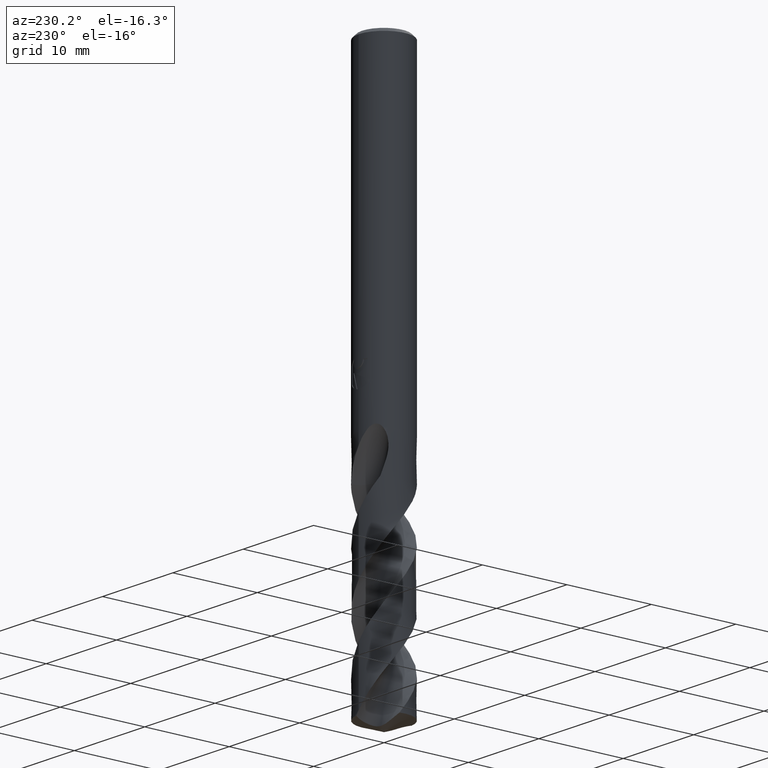
[diagram: clean part render]
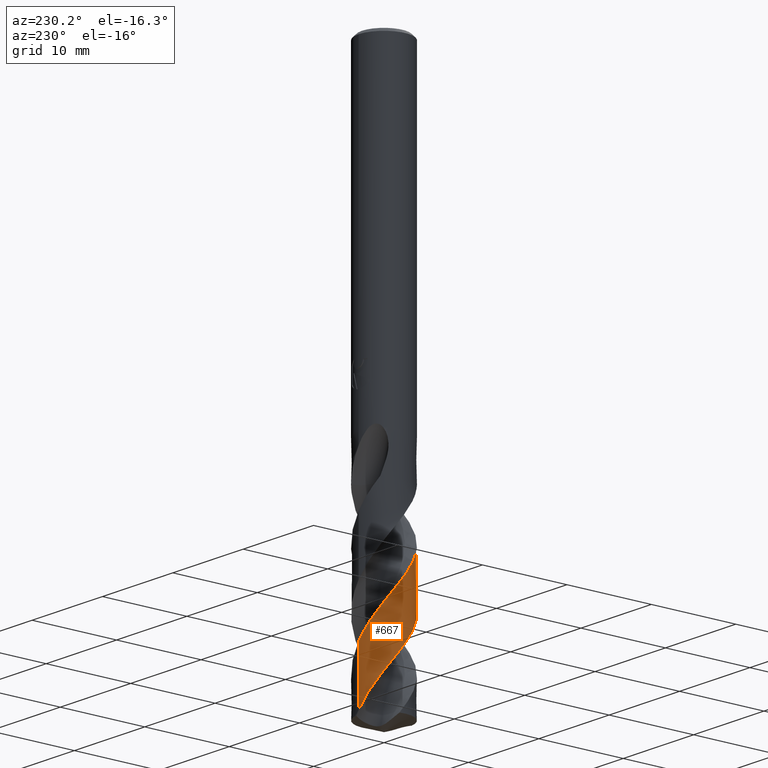
[diagram: same view with one face highlighted and labeled with its STEP entity id]
A machine part, auxiliary view. The second image highlights one B-rep face of the part: STEP entity #667.
In plain terms, the highlighted conical surface has half-angle 0 deg.
Its self-contained STEP definition (entity closure, byte-faithful):
#257=VERTEX_POINT('',#716);
#363=EDGE_CURVE('',#257,#399,#831,.T.);
#375=EDGE_CURVE('',#399,#529,#844,.T.);
#399=VERTEX_POINT('',#871);
#413=EDGE_CURVE('',#529,#515,#886,.T.);
#515=VERTEX_POINT('',#997);
#529=VERTEX_POINT('',#1013);
#583=EDGE_CURVE('',#515,#257,#1071,.T.);
#667=ADVANCED_FACE('',(#1164),#1165,.T.);
#716=CARTESIAN_POINT('',(-7.76769839626345E-014,2.99997405367527,-57.9264290689531));
#831=LINE('',#2190,#2191);
#844=B_SPLINE_CURVE_WITH_KNOTS('',3,(#2209,#2210,#2211,#2212,#2213,#2214,#2215,#2216,#2217,#2218,#2219,#2220,#2221,#2222,#2223,#2224,#2225,#2226,#2227,#2228,#2229,#2230,#2231,#2232,#2233,#2234,#2235,#2236,#2237,#2238,#2239,#2240,#2241,#2242,#2243,#2244,#2245,#2246,#2247,#2248,#2249,#2250,#2251,#2252,#2253,#2254,#2255,#2256,#2257,#2258,#2259,#2260,#2261,#2262,#2263,#2264,#2265,#2266,#2267,#2268,#2269,#2270,#2271,#2272,#2273,#2274,#2275,#2276,#2277,#2278,#2279,#2280,#2281,#2282,#2283,#2284,#2285,#2286),.UNSPECIFIED.,.F.,.F.,(4,2,2,2,2,2,2,2,2,2,2,2,2,2,2,2,2,2,2,2,2,2,2,2,2,2,2,2,2,2,2,2,2,2,2,2,2,2,4),(0.0,1.23059925118849,2.02254366443159,2.67546675293047,4.09672308397308,4.23628683515398,5.82683230148594,6.40497399606678,7.7780970524227,7.91502252090712,9.56634925585409,9.84450840921103,11.4877242502874,11.7588412039597,12.7161327518608,14.2986042545293,14.69491313978,15.0909294602242,15.3754807391882,16.3953776993288,17.9810262349513,18.7752393410076,19.0877081876738,20.7383235339199,21.0281845886458,21.9273418856885,22.3315568392924,22.8934305032543,23.9805915588334,25.9628607800466,26.9171063319389,27.1507275410228,27.3314841823381,27.332107871347,27.3564421567242,27.3779982106044,27.4053041831309,27.4618206861785,27.5436484122927),.UNSPECIFIED.);
#871=CARTESIAN_POINT('',(-2.94166652379847E-010,2.99999825594697,-64.4387979511909));
#886=LINE('',#2496,#2497);
#997=CARTESIAN_POINT('',(-1.00300927533167E-014,-2.99992813344869,-45.5701734954129));
#1013=CARTESIAN_POINT('',(1.29858009831303E-013,-2.9999523347009,-52.0822680513244));
#1071=B_SPLINE_CURVE_WITH_KNOTS('',3,(#3784,#3785,#3786,#3787,#3788,#3789,#3790,#3791,#3792,#3793,#3794,#3795,#3796,#3797,#3798,#3799,#3800,#3801,#3802,#3803,#3804,#3805,#3806,#3807,#3808,#3809,#3810,#3811,#3812,#3813,#3814,#3815,#3816,#3817,#3818,#3819,#3820,#3821,#3822,#3823,#3824,#3825,#3826,#3827,#3828,#3829,#3830,#3831,#3832,#3833,#3834,#3835,#3836,#3837,#3838,#3839,#3840,#3841,#3842,#3843,#3844,#3845,#3846,#3847,#3848,#3849,#3850,#3851,#3852,#3853,#3854,#3855,#3856,#3857,#3858,#3859,#3860,#3861,#3862,#3863,#3864,#3865,#3866,#3867,#3868,#3869),.UNSPECIFIED.,.F.,.F.,(4,2,2,2,2,2,2,2,2,2,2,2,2,2,2,2,2,2,2,2,2,2,2,2,2,2,2,2,2,2,2,2,2,2,2,2,2,2,2,2,2,2,4),(0.0,0.0993043886910324,0.133810008353453,0.198759733156369,0.51618650020772,0.627581816484018,0.698954258966255,0.766036611279358,0.856023579051509,0.957565005734158,1.34121247506467,1.63577952648651,1.92231758631105,3.79579283339037,5.15351212799853,5.91578553599356,6.68924621351449,7.07780265431932,7.44370029096749,8.79859775236509,9.56043310014897,10.334303063432,10.722547094251,11.0750210956175,12.4456948866715,13.2055523892608,13.9797062395637,14.7546070655554,16.2481405469769,16.4087688709198,17.6175894923522,18.3915079182685,19.9131645175091,19.9630808402596,21.5787151557321,21.9328013399243,23.2883165362066,23.8248217374293,24.7699014758561,25.1262025587651,25.7472539043362,26.6829038929545,27.6207703508134),.UNSPECIFIED.);
#1164=FACE_OUTER_BOUND('',#4803,.T.);
#1165=CONICAL_SURFACE('',#4804,2.99995,3.71635454659173E-006);
#2190=CARTESIAN_POINT('',(-3.66830741968708E-016,2.99995,-51.4540446486007));
#2191=VECTOR('',#5074,1.0);
#2209=CARTESIAN_POINT('',(0.355715429172608,2.97883643952611,-64.9080892972014));
#2210=CARTESIAN_POINT('',(0.108423872193947,3.00836534792681,-64.5821464116512));
#2211=CARTESIAN_POINT('',(-0.14126292742069,3.00699487664025,-64.2534313312999));
#2212=CARTESIAN_POINT('',(-0.547022784109965,2.95405006143379,-63.7175674678408));
#2213=CARTESIAN_POINT('',(-0.703916104603996,2.92063233410042,-63.5087790854431));
#2214=CARTESIAN_POINT('',(-0.983777162831405,2.8371744636381,-63.1258038129837));
#2215=CARTESIAN_POINT('',(-1.10750346682162,2.79120229814625,-62.9520627314224));
#2216=CARTESIAN_POINT('',(-1.49003201116616,2.61959523917925,-62.4022537567128));
#2217=CARTESIAN_POINT('',(-1.73356156526769,2.46510658651888,-62.0309006535153));
#2218=CARTESIAN_POINT('',(-1.97251142065753,2.26051244051107,-61.6166980609076));
#2219=CARTESIAN_POINT('',(-1.99359188261644,2.24194319602669,-61.5796521623226));
#2220=CARTESIAN_POINT('',(-2.25212692993936,2.00766523526649,-61.1202779276782));
#2221=CARTESIAN_POINT('',(-2.45372823013072,1.7555969038838,-60.7060501227171));
#2222=CARTESIAN_POINT('',(-2.66904958562007,1.37465483831421,-60.131142160839));
#2223=CARTESIAN_POINT('',(-2.72054892765585,1.26971487818829,-59.9771589417432));
#2224=CARTESIAN_POINT('',(-2.8733943045389,0.905874186704099,-59.4595376310633));
#2225=CARTESIAN_POINT('',(-2.94475741547369,0.636407230716807,-59.1002867606203));
#2226=CARTESIAN_POINT('',(-2.98145611461726,0.33398214789438,-58.6993505678631));
#2227=CARTESIAN_POINT('',(-2.98439978299617,0.306560521861027,-58.6629886142862));
#2228=CARTESIAN_POINT('',(-3.01790883658861,-0.0520769974475426,-58.188650092877));
#2229=CARTESIAN_POINT('',(-2.9935807850138,-0.386006275418927,-57.7595478519967));
#2230=CARTESIAN_POINT('',(-2.90167181877003,-0.7637214625324,-57.2485079163081));
#2231=CARTESIAN_POINT('',(-2.88692285382064,-0.81770241854698,-57.1747113627708));
#2232=CARTESIAN_POINT('',(-2.77462888700925,-1.1876848669478,-56.666026182787));
#2233=CARTESIAN_POINT('',(-2.62703780792911,-1.48580498713024,-56.239728305507));
#2234=CARTESIAN_POINT('',(-2.40203744711239,-1.79804963439508,-55.7332363672762));
#2235=CARTESIAN_POINT('',(-2.36898216096019,-1.84138636647667,-55.6613840187392));
#2236=CARTESIAN_POINT('',(-2.2134899211291,-2.03408005192827,-55.3358589079439));
#2237=CARTESIAN_POINT('',(-2.07794100424594,-2.17242022805645,-55.0840334642739));
#2238=CARTESIAN_POINT('',(-1.68474385633832,-2.50275639506825,-54.4124773306945));
#2239=CARTESIAN_POINT('',(-1.40847840779455,-2.66802012056147,-53.9930328364081));
#2240=CARTESIAN_POINT('',(-1.03682817966024,-2.81623042134794,-53.4698608760575));
#2241=CARTESIAN_POINT('',(-0.961251210578935,-2.84291301538508,-53.365195142781));
#2242=CARTESIAN_POINT('',(-0.808236207114983,-2.89013812736791,-53.1556590390761));
#2243=CARTESIAN_POINT('',(-0.730944485985276,-2.91064047460743,-53.0509858237727));
#2244=CARTESIAN_POINT('',(-0.597050152329564,-2.94050210353061,-52.8707253956608));
#2245=CARTESIAN_POINT('',(-0.540816258263153,-2.95135917311015,-52.7952164478755));
#2246=CARTESIAN_POINT('',(-0.281981202353597,-2.99370334687491,-52.450057107698));
#2247=CARTESIAN_POINT('',(-0.0764041741893483,-3.00603514307549,-52.1823957078234));
#2248=CARTESIAN_POINT('',(0.448960805724959,-2.98337827034909,-51.4947785251873));
#2249=CARTESIAN_POINT('',(0.764335279179242,-2.91854282624644,-51.0752713204472));
#2250=CARTESIAN_POINT('',(1.21343840984988,-2.74826069131348,-50.4472171681916));
#2251=CARTESIAN_POINT('',(1.35830337547638,-2.67959448180724,-50.2385056676068));
#2252=CARTESIAN_POINT('',(1.55129812661377,-2.56848088818788,-49.94596610728));
#2253=CARTESIAN_POINT('',(1.60469804454467,-2.53545673745866,-49.8631918568593));
#2254=CARTESIAN_POINT('',(1.93310734454785,-2.31785994077389,-49.344783991864));
#2255=CARTESIAN_POINT('',(2.17686365028644,-2.09057094449036,-48.9176803776869));
#2256=CARTESIAN_POINT('',(2.41400755376753,-1.78201536618773,-48.4056760544633));
#2257=CARTESIAN_POINT('',(2.44807042219407,-1.73492794313762,-48.3290593553937));
#2258=CARTESIAN_POINT('',(2.58242582262247,-1.5373203357321,-48.0149387172119));
#2259=CARTESIAN_POINT('',(2.67046734698487,-1.37879733278526,-47.7789345950098));
#2260=CARTESIAN_POINT('',(2.77671298833341,-1.13847097429135,-47.4353383336979));
#2261=CARTESIAN_POINT('',(2.80658466002186,-1.06268946773971,-47.3288677116154));
#2262=CARTESIAN_POINT('',(2.87048071801647,-0.879051052044188,-47.0739364077395));
#2263=CARTESIAN_POINT('',(2.9015116585558,-0.770414524594633,-46.9250754881505));
#2264=CARTESIAN_POINT('',(2.97435156474368,-0.447664382337742,-46.4901160911542));
#2265=CARTESIAN_POINT('',(2.99909143826466,-0.23000332275836,-46.2060163083951));
#2266=CARTESIAN_POINT('',(3.0013981760678,0.387705065149538,-45.3982306889312));
#2267=CARTESIAN_POINT('',(2.92336149064987,0.783187841239573,-44.8740622106938));
#2268=CARTESIAN_POINT('',(2.69583282506547,1.33006382876436,-44.1038262157045));
#2269=CARTESIAN_POINT('',(2.60718050882251,1.49558842303184,-43.8682873785209));
#2270=CARTESIAN_POINT('',(2.4796655483617,1.68904087442066,-43.5517912319621));
#2271=CARTESIAN_POINT('',(2.45406487003669,1.7259933584331,-43.4892372093897));
#2272=CARTESIAN_POINT('',(2.40788643900192,1.78963101243892,-43.377240969005));
#2273=CARTESIAN_POINT('',(2.38753213382402,1.81667996127583,-43.3281534388184));
#2274=CARTESIAN_POINT('',(2.36692845706543,1.84314063488602,-43.2785183839988));
#2275=CARTESIAN_POINT('',(2.36627009621356,1.84398584589191,-43.2769333219162));
#2276=CARTESIAN_POINT('',(2.35288675920936,1.86115321773287,-43.2447693668841));
#2277=CARTESIAN_POINT('',(2.3393808104854,1.8781123243806,-43.2137771389712));
#2278=CARTESIAN_POINT('',(2.31294737430535,1.91054328842237,-43.1559163518822));
#2279=CARTESIAN_POINT('',(2.30015264545649,1.92593569582255,-43.1290310868797));
#2280=CARTESIAN_POINT('',(2.27022723088149,1.96118562979294,-43.0686868352912));
#2281=CARTESIAN_POINT('',(2.25288279129273,1.98110082667267,-43.0354528065236));
#2282=CARTESIAN_POINT('',(2.1975893208719,2.04284959041853,-42.9347726385718));
#2283=CARTESIAN_POINT('',(2.15764844681876,2.08511781051689,-42.8691279792306));
#2284=CARTESIAN_POINT('',(2.05269160805423,2.18943444393418,-42.712894306644));
#2285=CARTESIAN_POINT('',(1.98511261037829,2.25120515308698,-42.6252793260781));
#2286=CARTESIAN_POINT('',(1.911620345301,2.31197078660974,-42.541));
#2496=CARTESIAN_POINT('',(3.6792082426118E-016,-2.99995,-51.4540446486007));
#2497=VECTOR('',#5139,1.0);
#3784=CARTESIAN_POINT('',(2.08517324191318,-2.15674611716699,-42.541));
#3785=CARTESIAN_POINT('',(2.0713662249792,-2.17009507957393,-42.5679606812222));
#3786=CARTESIAN_POINT('',(2.05740259257669,-2.18333927545195,-42.5949154120445));
#3787=CARTESIAN_POINT('',(2.03833917110658,-2.20107286913864,-42.6311909795339));
#3788=CARTESIAN_POINT('',(2.0334027773192,-2.20563413543843,-42.6405382927532));
#3789=CARTESIAN_POINT('',(2.01910848606936,-2.21875315122864,-42.6674653878255));
#3790=CARTESIAN_POINT('',(2.00970103222941,-2.22727830356221,-42.6850155380857));
#3791=CARTESIAN_POINT('',(1.95378549031509,-2.27730282985589,-42.7882461816633));
#3792=CARTESIAN_POINT('',(1.90635411299343,-2.31720578089442,-42.8713793673941));
#3793=CARTESIAN_POINT('',(1.83822770175415,-2.37085163373592,-42.9848535197248));
#3794=CARTESIAN_POINT('',(1.82032176097817,-2.38462923810703,-43.0141781256821));
#3795=CARTESIAN_POINT('',(1.79052361574516,-2.40702096676789,-43.0622690560887));
#3796=CARTESIAN_POINT('',(1.77880463197156,-2.41569470946824,-43.0810074905648));
#3797=CARTESIAN_POINT('',(1.75589609286634,-2.43239217011034,-43.1173442910875));
#3798=CARTESIAN_POINT('',(1.74473015818419,-2.44041404126141,-43.1349227227943));
#3799=CARTESIAN_POINT('',(1.71842340575681,-2.45903994304626,-43.1760792102156));
#3800=CARTESIAN_POINT('',(1.70324884989814,-2.46957499819532,-43.1996222750514));
#3801=CARTESIAN_POINT('',(1.67074007465769,-2.49170209493518,-43.2497692210443));
#3802=CARTESIAN_POINT('',(1.65322053112758,-2.50336342599459,-43.2766101030572));
#3803=CARTESIAN_POINT('',(1.56835025285938,-2.55855548193974,-43.4065077601252));
#3804=CARTESIAN_POINT('',(1.49994250674856,-2.59921712974915,-43.5104160075398));
#3805=CARTESIAN_POINT('',(1.37725301056092,-2.66577876394736,-43.6937516394829));
#3806=CARTESIAN_POINT('',(1.32314093701042,-2.69304524636637,-43.7736262459129));
#3807=CARTESIAN_POINT('',(1.21489751535045,-2.74354242807715,-43.9309339989632));
#3808=CARTESIAN_POINT('',(1.16079138310293,-2.76687192371843,-44.0083125396245));
#3809=CARTESIAN_POINT('',(0.747244991401334,-2.93088111564392,-44.5918968157289));
#3810=CARTESIAN_POINT('',(0.36440090242091,-3.00262113232733,-45.0921282721115));
#3811=CARTESIAN_POINT('',(-0.301246045592043,-2.99784321940957,-45.9653638677342));
#3812=CARTESIAN_POINT('',(-0.579475805257757,-2.95672109193257,-46.3309179806883));
#3813=CARTESIAN_POINT('',(-0.998861349085674,-2.8331235421568,-46.9035740152163));
#3814=CARTESIAN_POINT('',(-1.1458450286393,-2.77692318219712,-47.109162096302));
#3815=CARTESIAN_POINT('',(-1.43159340315496,-2.64112512332054,-47.5242854707705));
#3816=CARTESIAN_POINT('',(-1.56989103413118,-2.56134543770679,-47.7330760118645));
#3817=CARTESIAN_POINT('',(-1.76722632857721,-2.42547998148321,-48.0470373877574));
#3818=CARTESIAN_POINT('',(-1.83137338443878,-2.37741859600482,-48.1519463064316));
#3819=CARTESIAN_POINT('',(-1.95205620651975,-2.27921075884667,-48.3557577833214));
#3820=CARTESIAN_POINT('',(-2.00874309449065,-2.22941052214108,-48.4545294236254));
#3821=CARTESIAN_POINT('',(-2.26617702654219,-1.98546309507629,-48.9196403289537));
#3822=CARTESIAN_POINT('',(-2.44116898284105,-1.76591524806349,-49.2845484223664));
#3823=CARTESIAN_POINT('',(-2.66316630137009,-1.38992998298159,-49.8564913008071));
#3824=CARTESIAN_POINT('',(-2.73226589423215,-1.24861321739065,-50.062060342371));
#3825=CARTESIAN_POINT('',(-2.84857426567333,-0.954322013961998,-50.4772804297843));
#3826=CARTESIAN_POINT('',(-2.89529285141889,-0.801520308820772,-50.6862116525923));
#3827=CARTESIAN_POINT('',(-2.94687706955706,-0.56746518608555,-51.0002656613687));
#3828=CARTESIAN_POINT('',(-2.9609748586183,-0.488604315984622,-51.1051120430889));
#3829=CARTESIAN_POINT('',(-2.98182078981674,-0.337235946886177,-51.3052598493068));
#3830=CARTESIAN_POINT('',(-2.98911454478957,-0.264901125849395,-51.4004416520575));
#3831=CARTESIAN_POINT('',(-3.01189676485371,0.0895850372469975,-51.866303604052));
#3832=CARTESIAN_POINT('',(-2.9900946626874,0.372866302933664,-52.2354648784149));
#3833=CARTESIAN_POINT('',(-2.89500312234429,0.80203884410511,-52.8112624324439));
#3834=CARTESIAN_POINT('',(-2.84916041157102,0.952126982551864,-53.016383672271));
#3835=CARTESIAN_POINT('',(-2.73345842590167,1.24635737139552,-53.4312328328383));
#3836=CARTESIAN_POINT('',(-2.6632888240793,1.39001627461874,-53.6402681290601));
#3837=CARTESIAN_POINT('',(-2.5005861083967,1.6650466346423,-54.0589700717103));
#3838=CARTESIAN_POINT('',(-2.40836272646709,1.79584871809374,-54.2678025574753));
#3839=CARTESIAN_POINT('',(-2.1092689833944,2.15535757965936,-54.8812438632985));
#3840=CARTESIAN_POINT('',(-1.87696512336435,2.36045690650833,-55.2828604825235));
#3841=CARTESIAN_POINT('',(-1.5895065574644,2.54447691017644,-55.72998297964));
#3842=CARTESIAN_POINT('',(-1.56130637645593,2.56187753314104,-55.7733909947885));
#3843=CARTESIAN_POINT('',(-1.31848726032063,2.70620915628686,-56.1436932877369));
#3844=CARTESIAN_POINT('',(-1.08901589590438,2.806437235125,-56.4700055634251));
#3845=CARTESIAN_POINT('',(-0.6965929875031,2.92234340134945,-57.0061281831914));
#3846=CARTESIAN_POINT('',(-0.540115887711946,2.95526270647084,-57.2147885549827));
#3847=CARTESIAN_POINT('',(-0.0705443361743187,3.01551744641625,-57.8358189349753));
#3848=CARTESIAN_POINT('',(0.245224293298711,3.00638644178954,-58.2449586694811));
#3849=CARTESIAN_POINT('',(0.564025302079051,2.94649665012841,-58.6699223038638));
#3850=CARTESIAN_POINT('',(0.574139785496782,2.94454255402132,-58.6834186027293));
#3851=CARTESIAN_POINT('',(0.911323568585652,2.87759589587173,-59.1338930868946));
#3852=CARTESIAN_POINT('',(1.22546117370618,2.75851996494012,-59.5689632013899));
#3853=CARTESIAN_POINT('',(1.5766481895736,2.55331541417768,-60.1017585949495));
#3854=CARTESIAN_POINT('',(1.63838246667551,2.51414738256092,-60.1974754596238));
#3855=CARTESIAN_POINT('',(1.92918052102943,2.31439295696574,-60.660161051938));
#3856=CARTESIAN_POINT('',(2.1365955781335,2.12444400901148,-61.0256694359284));
#3857=CARTESIAN_POINT('',(2.38519926969777,1.82291778773025,-61.5375353677295));
#3858=CARTESIAN_POINT('',(2.4508655485857,1.73362181310532,-61.682496932154));
#3859=CARTESIAN_POINT('',(2.61810760598285,1.47766308629219,-62.0835878318809));
#3860=CARTESIAN_POINT('',(2.70864901118043,1.30431911702288,-62.3390888180747));
#3861=CARTESIAN_POINT('',(2.8092771020276,1.05514260425668,-62.6913049220598));
#3862=CARTESIAN_POINT('',(2.83431248779093,0.985921705383272,-62.7876804986658));
#3863=CARTESIAN_POINT('',(2.89594166709451,0.793685105217334,-63.0521550904615));
#3864=CARTESIAN_POINT('',(2.92721299160193,0.669191232050335,-63.2200590201583));
#3865=CARTESIAN_POINT('',(2.98538256362525,0.353206981424194,-63.641502210555));
#3866=CARTESIAN_POINT('',(3.00194437436934,0.160250041718632,-63.8942188077406));
#3867=CARTESIAN_POINT('',(2.9976806285827,-0.226824887252673,-64.4011223780692));
#3868=CARTESIAN_POINT('',(2.97678349229506,-0.419707641158025,-64.6539769317167));
#3869=CARTESIAN_POINT('',(2.93752141660916,-0.609071364424951,-64.9080892972014));
#4803=EDGE_LOOP('',(#5472,#5473,#5474,#5475));
#4804=AXIS2_PLACEMENT_3D('',#5476,#5477,#5478);
#5074=DIRECTION('',(-4.55107139080244E-022,3.71635454658318E-006,-0.999999999993094));
#5139=DIRECTION('',(-4.55107139080244E-022,3.71635454658318E-006,0.999999999993094));
#5472=ORIENTED_EDGE('',*,*,#363,.T.);
#5473=ORIENTED_EDGE('',*,*,#375,.T.);
#5474=ORIENTED_EDGE('',*,*,#413,.T.);
#5475=ORIENTED_EDGE('',*,*,#583,.T.);
#5476=CARTESIAN_POINT('',(0.0,0.0,-51.4540446486007));
#5477=DIRECTION('',(0.0,-0.0,-1.0));
#5478=DIRECTION('',(0.0,1.0,0.0));